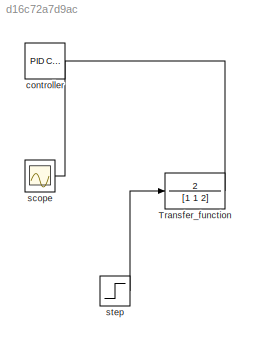
MODEL slx_d16c72a7d9ac
KIND model
CONFIG AbsTol = auto
CONFIG EnableMultiTasking = off
CONFIG FixedStep = auto
CONFIG MaxStep = auto
CONFIG MinStep = auto
CONFIG RelTol = 1e-3
CONFIG SampleTimeConstraint = Unconstrained
CONFIG SolverName = VariableStepAuto
CONFIG StartTime = 0.0
CONFIG StopTime = 10.0
BLOCK [TransferFcn] Transfer_function
  Denominator = [1 1 2]
  Numerator = 2
BLOCK [Reference] controller  REF=slpidlib/PID Controller
  SourceBlock = slpidlib/PID Controller
  SourceType = PID 1dof
BLOCK [Scope] scope
  Floating = off
  NumInputPorts = 1
BLOCK [Step] step
  SampleTime = 0
LINE Transfer_function:1 -> controller:1
LINE controller:1 -> scope:1
LINE step:1 -> Transfer_function:1
